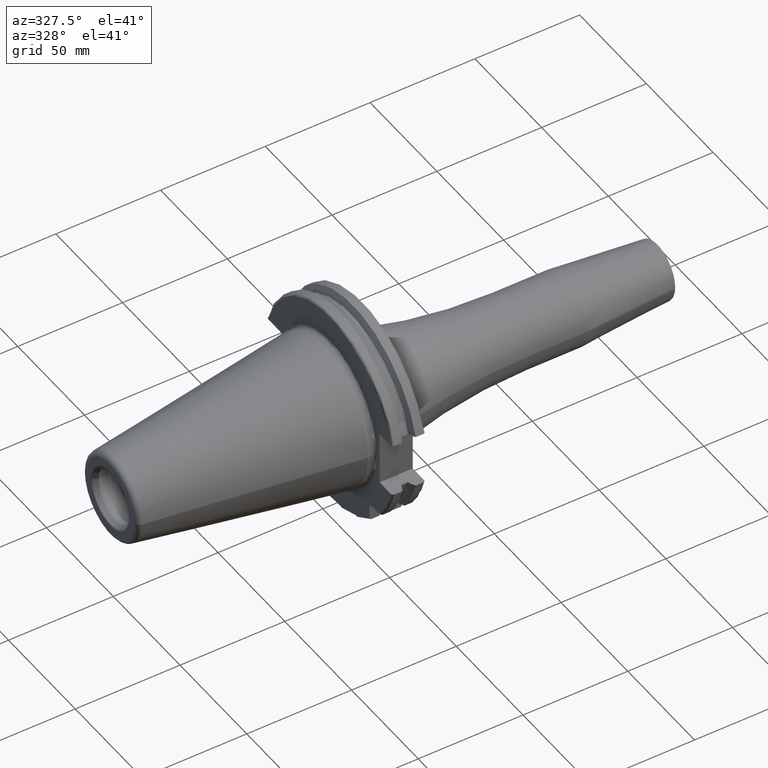
[diagram: clean part render]
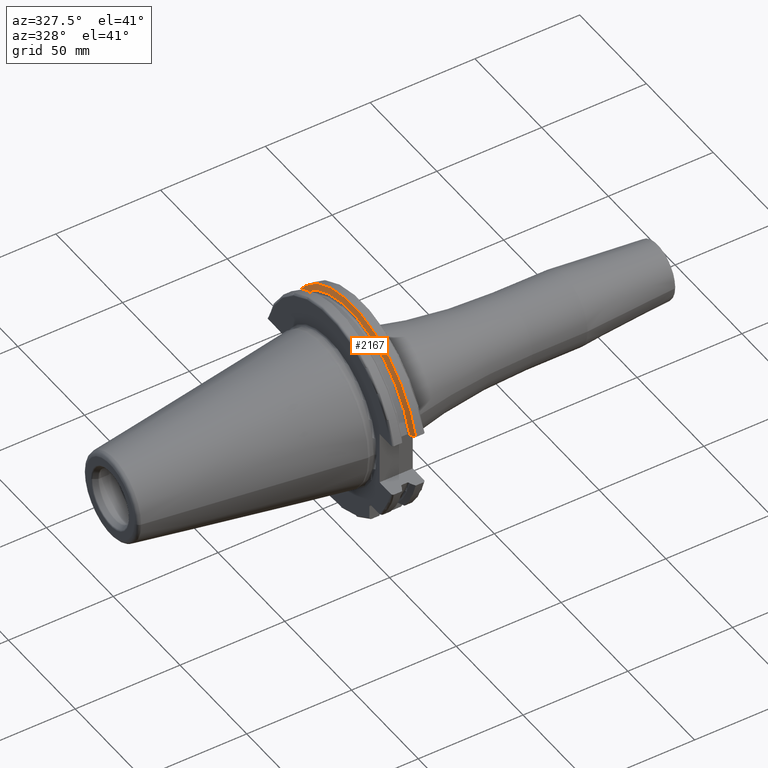
[diagram: same view with one face highlighted and labeled with its STEP entity id]
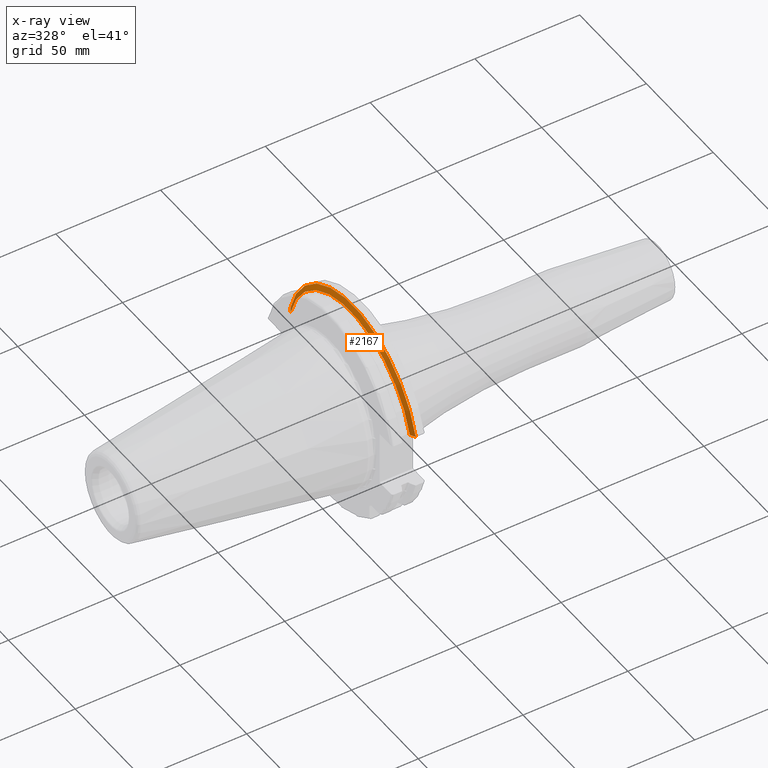
[diagram: x-ray of the same camera — body ghosted, the highlighted face saturated]
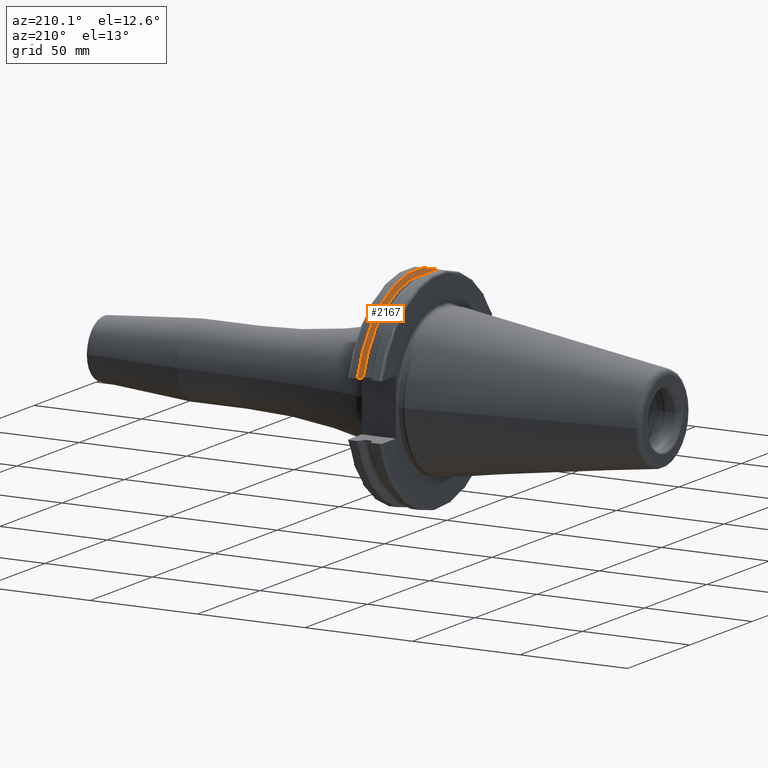
[diagram: same view with one face highlighted and labeled with its STEP entity id]
A machine part, auxiliary view. The second image highlights one B-rep face of the part: STEP entity #2167.
The next image is the same camera in x-ray: the body ghosted, the highlighted face saturated — about 0% of this face is hidden behind the body in this view.
A second angle (auxiliary view) of the same face is appended — the face is thin or edge-on in the first view.
In plain terms, the highlighted conical surface has half-angle 60 deg.
Its self-contained STEP definition (entity closure, byte-faithful):
#477=CARTESIAN_POINT('',(1.441537838583E1,4.699929686974E1,1.29E1));
#478=CARTESIAN_POINT('',(1.426451908496E1,4.672833723043E1,1.29E1));
#479=CARTESIAN_POINT('',(1.396501135619E1,4.619006057422E1,1.29E1));
#480=CARTESIAN_POINT('',(1.352242021955E1,4.539363402665E1,1.29E1));
#481=CARTESIAN_POINT('',(1.323173924582E1,4.486988275438E1,1.29E1));
#482=CARTESIAN_POINT('',(1.30875E1,4.460981716077E1,1.29E1));
#484=CARTESIAN_POINT('',(1.30875E1,-4.460981716077E1,1.29E1));
#485=CARTESIAN_POINT('',(1.323171622645E1,-4.486984125009E1,1.29E1));
#486=CARTESIAN_POINT('',(1.352236645045E1,-4.539353719098E1,1.29E1));
#487=CARTESIAN_POINT('',(1.396495664446E1,-4.618996220278E1,1.29E1));
#488=CARTESIAN_POINT('',(1.426449561388E1,-4.672829507383E1,1.29E1));
#489=CARTESIAN_POINT('',(1.441537838583E1,-4.699929686974E1,1.29E1));
#491=CARTESIAN_POINT('',(1.30875E1,0.E0,0.E0));
#492=DIRECTION('',(1.E0,0.E0,0.E0));
#493=DIRECTION('',(0.E0,9.606411165078E-1,2.777924499957E-1));
#494=AXIS2_PLACEMENT_3D('',#491,#492,#493);
#522=CARTESIAN_POINT('',(1.441537838583E1,0.E0,0.E0));
#523=DIRECTION('',(1.E0,0.E0,0.E0));
#524=DIRECTION('',(0.E0,9.643354064066E-1,2.646832521159E-1));
#525=AXIS2_PLACEMENT_3D('',#522,#523,#524);
#1340=CARTESIAN_POINT('',(1.30875E1,4.460981716077E1,1.29E1));
#1341=VERTEX_POINT('',#1340);
#1350=CARTESIAN_POINT('',(1.30875E1,-4.460981716077E1,1.29E1));
#1351=VERTEX_POINT('',#1350);
#1352=VERTEX_POINT('',#477);
#1353=VERTEX_POINT('',#489);
#2155=CARTESIAN_POINT('',(1.375143919291E1,0.E0,0.E0));
#2156=DIRECTION('',(1.E0,0.E0,0.E0));
#2157=DIRECTION('',(0.E0,-1.E0,0.E0));
#2158=AXIS2_PLACEMENT_3D('',#2155,#2156,#2157);
#2159=CONICAL_SURFACE('',#2158,4.758752358474E1,6.E1);
#2160=ORIENTED_EDGE('',*,*,#2012,.F.);
#2162=ORIENTED_EDGE('',*,*,#2161,.T.);
#2163=ORIENTED_EDGE('',*,*,#2053,.F.);
#2164=ORIENTED_EDGE('',*,*,#2117,.F.);
#2165=EDGE_LOOP('',(#2160,#2162,#2163,#2164));
#2166=FACE_OUTER_BOUND('',#2165,.F.);
#2167=ADVANCED_FACE('',(#2166),#2159,.T.);
#483=B_SPLINE_CURVE_WITH_KNOTS('',3,(#477,#478,#479,#480,#481,#482),
.UNSPECIFIED.,.F.,.F.,(4,1,1,4),(0.E0,3.333333333333E-1,6.666666666667E-1,1.E0),
.UNSPECIFIED.);
#490=B_SPLINE_CURVE_WITH_KNOTS('',3,(#484,#485,#486,#487,#488,#489),
.UNSPECIFIED.,.F.,.F.,(4,1,1,4),(0.E0,3.333333333333E-1,6.666666666667E-1,1.E0),
.UNSPECIFIED.);
#495=CIRCLE('',#494,4.643754716948E1);
#526=CIRCLE('',#525,4.87375E1);
#2012=EDGE_CURVE('',#1352,#1341,#483,.T.);
#2053=EDGE_CURVE('',#1351,#1353,#490,.T.);
#2117=EDGE_CURVE('',#1341,#1351,#495,.T.);
#2161=EDGE_CURVE('',#1352,#1353,#526,.T.);